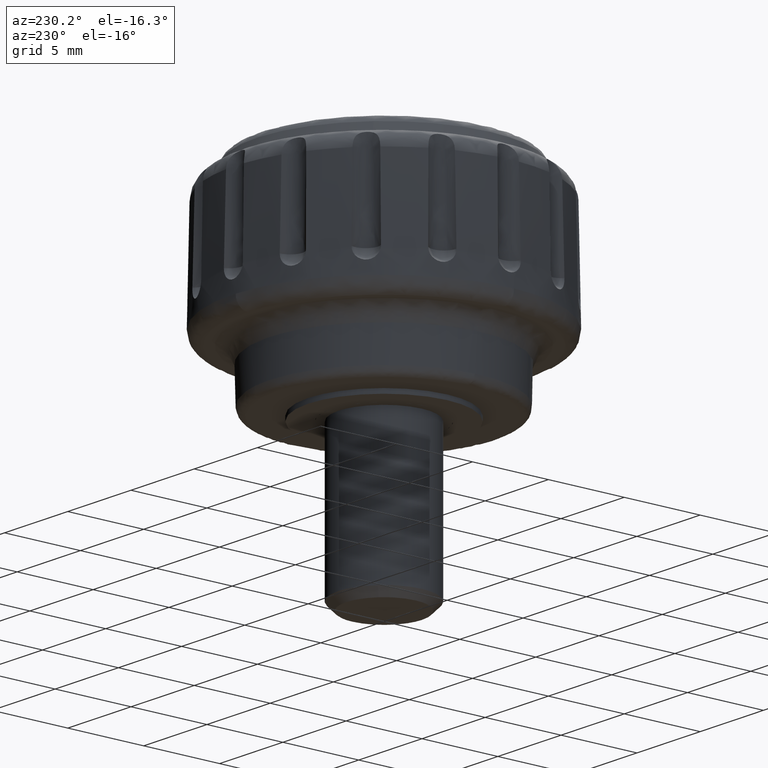
[diagram: clean part render]
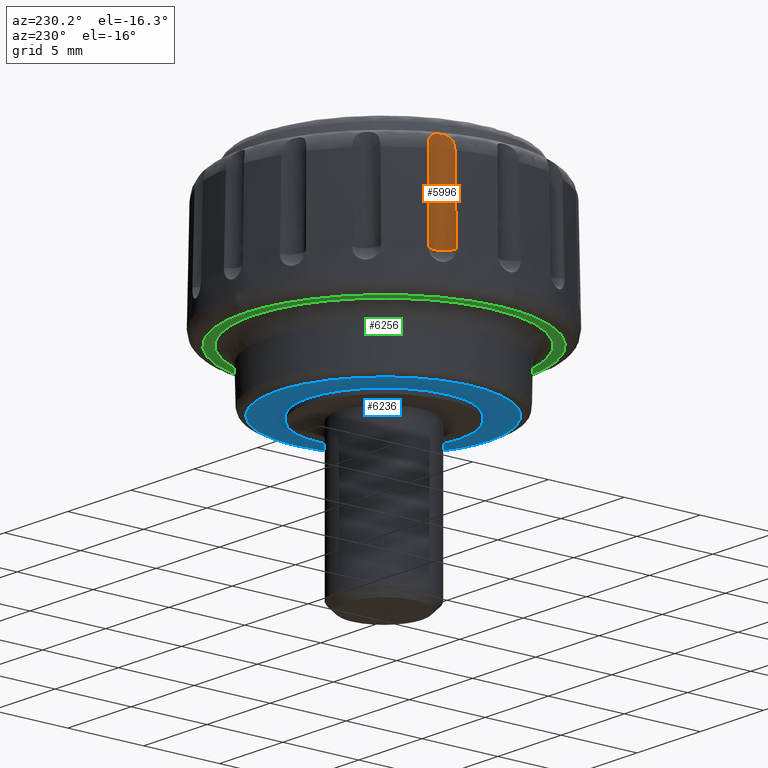
[diagram: same view with three faces highlighted in distinct colors, each labeled with its STEP entity id]
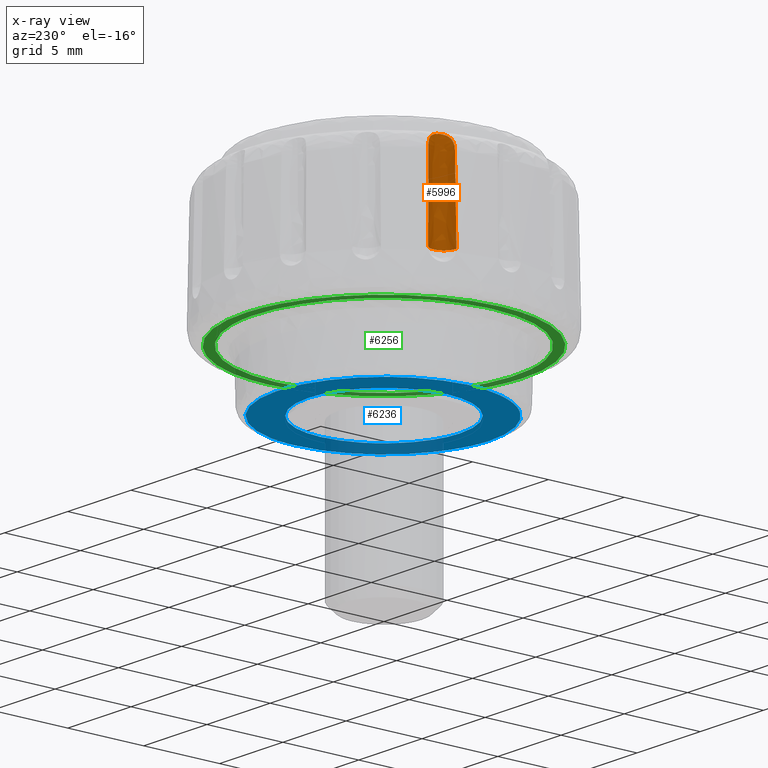
[diagram: x-ray of the same camera — body ghosted, the three highlighted faces saturated]
A machine part, auxiliary view with three faces highlighted in distinct colors.
The next image is the same camera in x-ray (body ghosted, the three faces saturated) — at least one of them is partly hidden behind the body in this view.
Their STEP definitions:

[orange] entity #5996 — the highlighted face is a freeform B-spline surface patch.
#2388=CARTESIAN_POINT('',(-9.342353820764480,3.107510079005215,11.624297996118401));
#2389=VERTEX_POINT('',#2388);
#2398=CARTESIAN_POINT('',(-9.454929184337260,3.103989979498800,6.399994000000130));
#2399=VERTEX_POINT('',#2398);
#2400=CARTESIAN_POINT('',(-9.454929184337260,3.103989979498800,6.399994000000130));
#2401=CARTESIAN_POINT('',(-9.342353820764480,3.107510079005215,11.624297996118401));
#2402=QUASI_UNIFORM_CURVE('',1,(#2400,#2401),.UNSPECIFIED.,.F.,.U.);
#2403=EDGE_CURVE('',#2399,#2389,#2402,.T.);
#2405=CARTESIAN_POINT('',(-8.880496905122159,4.490792178644780,6.399994000000119));
#2406=VERTEX_POINT('',#2405);
#2454=CARTESIAN_POINT('',(-8.803383188376751,4.408700289436485,11.624297996118401));
#2455=VERTEX_POINT('',#2454);
#2456=CARTESIAN_POINT('',(-8.803383188376751,4.408700289436485,11.624297996118401));
#2457=CARTESIAN_POINT('',(-8.880496905122159,4.490792178644780,6.399994000000119));
#2458=QUASI_UNIFORM_CURVE('',1,(#2456,#2457),.UNSPECIFIED.,.F.,.U.);
#2459=EDGE_CURVE('',#2455,#2406,#2458,.T.);
#4511=CARTESIAN_POINT('',(-9.342353820764489,3.107510079005210,11.624297996118401));
#4512=CARTESIAN_POINT('',(-9.341062533862969,3.107641871741112,11.682751883656540));
#4513=CARTESIAN_POINT('',(-9.335168843150557,3.108208179896984,11.740206799232951));
#4514=CARTESIAN_POINT('',(-9.314526694918495,3.110775423613771,11.853174576884170));
#4515=CARTESIAN_POINT('',(-9.299776513201532,3.112766938254323,11.908687386295069));
#4516=CARTESIAN_POINT('',(-9.270634898199655,3.118070202500775,11.990378186819910));
#4517=CARTESIAN_POINT('',(-9.259678449625818,3.120248805873692,12.017483500773469));
#4518=CARTESIAN_POINT('',(-9.235619899887555,3.125672454101159,12.070369958474370));
#4519=CARTESIAN_POINT('',(-9.222559939401616,3.128906032644845,12.096094436184710));
#4520=CARTESIAN_POINT('',(-9.180377450943041,3.140680488231310,12.171069754344920));
#4521=CARTESIAN_POINT('',(-9.148201650617921,3.151253786775212,12.218209182697020));
#4522=CARTESIAN_POINT('',(-9.076332435430386,3.181614383898344,12.305782467931850));
#4523=CARTESIAN_POINT('',(-9.037906562646869,3.200898487028604,12.344682891005061));
#4524=CARTESIAN_POINT('',(-8.978062608110761,3.238494290037252,12.395846759780399));
#4525=CARTESIAN_POINT('',(-8.957585545979240,3.252614588806467,12.411804236812459));
#4526=CARTESIAN_POINT('',(-8.917311690347779,3.283429685480305,12.440503150963631));
#4527=CARTESIAN_POINT('',(-8.897457535694789,3.300136623626364,12.453320381064319));
#4528=CARTESIAN_POINT('',(-8.858628627517899,3.336337790909768,12.476121725463321));
#4529=CARTESIAN_POINT('',(-8.839652782019579,3.355830195470930,12.486106835874160));
#4530=CARTESIAN_POINT('',(-8.802897964373646,3.397875247519701,12.503351168983830));
#4531=CARTESIAN_POINT('',(-8.785219111632248,3.420360930613105,12.510545423050051));
#4532=CARTESIAN_POINT('',(-8.752494790853351,3.466967207320761,12.521898989435170));
#4533=CARTESIAN_POINT('',(-8.737288925054882,3.491261789368260,12.526136537319291));
#4534=CARTESIAN_POINT('',(-8.709322591649434,3.541893293858875,12.531866158088951));
#4535=CARTESIAN_POINT('',(-8.696474124331484,3.568463473815458,12.533351399651620));
#4536=CARTESIAN_POINT('',(-8.662755497165541,3.649303986597335,12.533540440413191));
#4537=CARTESIAN_POINT('',(-8.646471421220904,3.704809146622667,12.528227017396651));
#4538=CARTESIAN_POINT('',(-8.626018416153283,3.818394394478055,12.505769128634620));
#4539=CARTESIAN_POINT('',(-8.622317842632061,3.873841035646358,12.489112560416929));
#4540=CARTESIAN_POINT('',(-8.624766670314269,3.954540271172828,12.454916770542569));
#4541=CARTESIAN_POINT('',(-8.626948565705520,3.980952835142473,12.441952670606950));
#4542=CARTESIAN_POINT('',(-8.633464202418836,4.031269799922425,12.413511622676040));
#4543=CARTESIAN_POINT('',(-8.637801043737065,4.055386856065128,12.397950175999950));
#4544=CARTESIAN_POINT('',(-8.648156359411475,4.101552833601770,12.364042462621560));
#4545=CARTESIAN_POINT('',(-8.654221189471770,4.123727859143391,12.345563490355820));
#4546=CARTESIAN_POINT('',(-8.667309465437809,4.165144652552653,12.306499764098000));
#4547=CARTESIAN_POINT('',(-8.674329798517338,4.184440384646016,12.285908983665241));
#4548=CARTESIAN_POINT('',(-8.696098232171558,4.238448586740508,12.221030132099781));
#4549=CARTESIAN_POINT('',(-8.711664437228484,4.269485788141831,12.173134099408740));
#4550=CARTESIAN_POINT('',(-8.740446592099898,4.320735539465304,12.073094693416360));
#4551=CARTESIAN_POINT('',(-8.753788097331245,4.341297070885148,12.020709829543630));
#4552=CARTESIAN_POINT('',(-8.770816643564668,4.365973539829180,11.938825169528901));
#4553=CARTESIAN_POINT('',(-8.776018131151707,4.373183296663354,11.910855568475551));
#4554=CARTESIAN_POINT('',(-8.785130519621008,4.385493790011108,11.854549707431291));
#4555=CARTESIAN_POINT('',(-8.789050381843287,4.390609744418858,11.826204751900111));
#4556=CARTESIAN_POINT('',(-8.798781705320440,4.403111276399570,11.740616414936911));
#4557=CARTESIAN_POINT('',(-8.802562282003821,4.407692768072289,11.682824618189439));
#4558=CARTESIAN_POINT('',(-8.803383188376751,4.408700289436485,11.624297996118401));
#4559=B_SPLINE_CURVE_WITH_KNOTS('',3,(#4511,#4512,#4513,#4514,#4515,#4516,#4517,#4518,#4519,#4520,#4521,#4522,#4523,#4524,#4525,#4526,#4527,#4528,#4529,#4530,#4531,#4532,#4533,#4534,#4535,#4536,#4537,#4538,#4539,#4540,#4541,#4542,#4543,#4544,#4545,#4546,#4547,#4548,#4549,#4550,#4551,#4552,#4553,#4554,#4555,#4556,#4557,#4558),.UNSPECIFIED.,.F.,.U.,(4,2,2,2,2,2,2,2,2,2,2,2,2,2,2,2,2,2,2,2,2,2,2,4),(0.0,0.062499999999998,0.124999999999996,0.156249999999996,0.187499999999996,0.249999999999998,0.312499999999999,0.343749999999999,0.374999999999999,0.406250000000000,0.437500000000000,0.468750000000000,0.500000000000000,0.562500000000001,0.625000000000001,0.656250000000002,0.687500000000002,0.718750000000003,0.750000000000004,0.812500000000004,0.875000000000004,0.906250000000003,0.937500000000002,1.0),.UNSPECIFIED.);
#4560=EDGE_CURVE('',#2389,#2455,#4559,.T.);
#5522=CARTESIAN_POINT('',(-9.454929184337260,3.103989979498800,6.399994000000130));
#5523=CARTESIAN_POINT('',(-9.378904938541702,3.100981494291780,6.399994000000135));
#5524=CARTESIAN_POINT('',(-9.261699081368196,3.113194445871780,6.399994000000127));
#5525=CARTESIAN_POINT('',(-9.107300824297525,3.164751180607827,6.399994000000141));
#5526=CARTESIAN_POINT('',(-8.972098375923480,3.235779812967625,6.399994000000091));
#5527=CARTESIAN_POINT('',(-8.854150340318075,3.333746513054762,6.399994000000188));
#5528=CARTESIAN_POINT('',(-8.758440464236099,3.452609402467548,6.399994000000111));
#5529=CARTESIAN_POINT('',(-8.688070561025910,3.576560023580290,6.399994000000147));
#5530=CARTESIAN_POINT('',(-8.629218515904674,3.750469664943116,6.399994000000119));
#5531=CARTESIAN_POINT('',(-8.614625866336198,3.960333966768833,6.399994000000130));
#5532=CARTESIAN_POINT('',(-8.656327638132112,4.150267673490742,6.399994000000127));
#5533=CARTESIAN_POINT('',(-8.738165048595073,4.330990610444182,6.399994000000119));
#5534=CARTESIAN_POINT('',(-8.817139542678373,4.432294329577874,6.399994000000127));
#5535=CARTESIAN_POINT('',(-8.880496905122159,4.490792178644780,6.399994000000119));
#5536=B_SPLINE_CURVE_WITH_KNOTS('',3,(#5522,#5523,#5524,#5525,#5526,#5527,#5528,#5529,#5530,#5531,#5532,#5533,#5534,#5535),.UNSPECIFIED.,.F.,.U.,(4,1,1,1,1,1,1,1,1,1,1,4),(0.000000031922387,0.228243489252435,0.349973290421748,0.486924100184803,0.684741272904991,0.806472342871111,0.943419536071489,1.110788447701560,1.354255705722550,1.567286410911851,1.689021049959605,1.947694732854463),.UNSPECIFIED.);
#5537=EDGE_CURVE('',#2399,#2406,#5536,.T.);
#5972=CARTESIAN_POINT('',(-9.461903857759133,3.104293967194231,12.686752165874379));
#5973=CARTESIAN_POINT('',(-9.461903857759133,3.104293967194231,6.242825045853263));
#5974=CARTESIAN_POINT('',(-8.886647394988035,3.076706406245466,12.686752165874386));
#5975=CARTESIAN_POINT('',(-8.886647394988035,3.076706406245466,6.242825045853263));
#5976=CARTESIAN_POINT('',(-8.677953904086486,3.613482056153641,12.686752165874379));
#5977=CARTESIAN_POINT('',(-8.677953904086486,3.613482056153641,6.242825045853263));
#5978=CARTESIAN_POINT('',(-8.469260413184939,4.150257706061817,12.686752165874386));
#5979=CARTESIAN_POINT('',(-8.469260413184939,4.150257706061817,6.242825045853263));
#5980=CARTESIAN_POINT('',(-8.912078043107048,4.518488093332048,12.686752165874379));
#5981=CARTESIAN_POINT('',(-8.912078043107048,4.518488093332048,6.242825045853263));
#5989=(BOUNDED_SURFACE()B_SPLINE_SURFACE(1,2,((#5972,#5974,#5976,#5978,#5980),(#5973,#5975,#5977,#5979,#5981)),.UNSPECIFIED.,.F.,.F.,.U.)B_SPLINE_SURFACE_WITH_KNOTS((2,2),(3,2,3),(0.0,6.443927120021118),(0.0,1.0,2.0),.UNSPECIFIED.)GEOMETRIC_REPRESENTATION_ITEM()RATIONAL_B_SPLINE_SURFACE(((1.0,0.811573981965012,1.0,0.811573981965012,1.0),(1.0,0.811573981965012,1.0,0.811573981965012,1.0)))REPRESENTATION_ITEM('')SURFACE());
#5990=ORIENTED_EDGE('',*,*,#2459,.T.);
#5991=ORIENTED_EDGE('',*,*,#5537,.F.);
#5992=ORIENTED_EDGE('',*,*,#2403,.T.);
#5993=ORIENTED_EDGE('',*,*,#4560,.T.);
#5994=EDGE_LOOP('',(#5990,#5991,#5992,#5993));
#5995=FACE_OUTER_BOUND('',#5994,.T.);
#5996=ADVANCED_FACE('',(#5995),#5989,.F.);

[blue] entity #6236 — the highlighted face is a freeform B-spline surface patch.
#1269=CARTESIAN_POINT('',(-3.228710985116786,-3.817779161280795,0.300014326748812));
#1270=VERTEX_POINT('',#1269);
#1276=CARTESIAN_POINT('',(-5.000001141194781,0.0,0.300014326748812));
#1277=VERTEX_POINT('',#1276);
#1278=CARTESIAN_POINT('',(-3.228710985116786,-3.817779161280795,0.300014326748812));
#1279=CARTESIAN_POINT('',(-3.522459436460499,-3.569471770053628,0.300014326748812));
#1280=CARTESIAN_POINT('',(-3.896317831594230,-3.170705179775126,0.300014326748812));
#1281=CARTESIAN_POINT('',(-4.293558788321400,-2.578017581260482,0.300014326748812));
#1282=CARTESIAN_POINT('',(-4.587938730494515,-2.028956265758997,0.300014326748813));
#1283=CARTESIAN_POINT('',(-4.803837584613387,-1.442848347247801,0.300014326748811));
#1284=CARTESIAN_POINT('',(-4.962464442132076,-0.723993742300744,0.300014326748812));
#1285=CARTESIAN_POINT('',(-5.000021985094931,-0.282814424952696,0.300014326748813));
#1286=CARTESIAN_POINT('',(-5.000001141194781,0.0,0.300014326748812));
#1287=B_SPLINE_CURVE_WITH_KNOTS('',3,(#1278,#1279,#1280,#1281,#1282,#1283,#1284,#1285,#1286),.UNSPECIFIED.,.F.,.U.,(4,1,1,1,1,1,4),(3.761153E-009,1.153879784144223,1.629008987517901,2.138074663421909,3.020449049907330,3.495577188246300,4.344017490336118),.UNSPECIFIED.);
#1288=EDGE_CURVE('',#1270,#1277,#1287,.T.);
#1290=CARTESIAN_POINT('',(0.000000380389754,5.000001141194766,0.300014326748812));
#1291=VERTEX_POINT('',#1290);
#1292=CARTESIAN_POINT('',(-5.000001141194781,0.0,0.300014326748812));
#1293=CARTESIAN_POINT('',(-5.000008549475763,0.214755426658628,0.300014326748812));
#1294=CARTESIAN_POINT('',(-4.971629008392371,0.654494205562724,0.300014326748812));
#1295=CARTESIAN_POINT('',(-4.845656986358417,1.287828354656300,0.300014326748814));
#1296=CARTESIAN_POINT('',(-4.632873711774091,1.918902732094746,0.300014326748808));
#1297=CARTESIAN_POINT('',(-4.325182308229123,2.544466110973952,0.300014326748817));
#1298=CARTESIAN_POINT('',(-3.940505426356899,3.101481511585686,0.300014326748807));
#1299=CARTESIAN_POINT('',(-3.452154946234651,3.640300066926530,0.300014326748816));
#1300=CARTESIAN_POINT('',(-2.883772324593608,4.112640339169984,0.300014326748814));
#1301=CARTESIAN_POINT('',(-2.245583377468793,4.484571246077727,0.300014326748804));
#1302=CARTESIAN_POINT('',(-1.583201868656775,4.758937294679451,0.300014326748816));
#1303=CARTESIAN_POINT('',(-0.859020552927294,4.949810049198955,0.300014326748811));
#1304=CARTESIAN_POINT('',(-0.296570269824917,5.000029885130998,0.300014326748812));
#1305=CARTESIAN_POINT('',(0.000000380389754,5.000001141194766,0.300014326748812));
#1306=B_SPLINE_CURVE_WITH_KNOTS('',3,(#1292,#1293,#1294,#1295,#1296,#1297,#1298,#1299,#1300,#1301,#1302,#1303,#1304,#1305),.UNSPECIFIED.,.F.,.U.,(4,1,1,1,1,1,1,1,1,1,1,4),(0.000000012652297,0.644266623509101,1.319222684142426,1.932819335125661,2.638453757029462,3.405445455161616,3.957669913965540,4.816705596388902,5.614379333376594,6.166614614482357,6.964288351625410,7.853995961573868),.UNSPECIFIED.);
#1307=EDGE_CURVE('',#1277,#1291,#1306,.T.);
#1309=CARTESIAN_POINT('',(5.000001141194781,0.0,0.300014326748812));
#1310=VERTEX_POINT('',#1309);
#1311=CARTESIAN_POINT('',(0.000000380389754,5.000001141194766,0.300014326748812));
#1312=CARTESIAN_POINT('',(0.357936601451986,5.000067868738126,0.300014326748812));
#1313=CARTESIAN_POINT('',(0.828329207788655,4.949269770089383,0.300014326748812));
#1314=CARTESIAN_POINT('',(1.492838125757139,4.780636900617029,0.300014326748812));
#1315=CARTESIAN_POINT('',(1.945828480995065,4.616988455975310,0.300014326748811));
#1316=CARTESIAN_POINT('',(2.460259594376710,4.363948556171949,0.300014326748812));
#1317=CARTESIAN_POINT('',(2.962323068286071,4.046027931329459,0.300014326748814));
#1318=CARTESIAN_POINT('',(3.544333587465859,3.559388066085278,0.300014326748808));
#1319=CARTESIAN_POINT('',(4.072528547502483,2.943252355823224,0.300014326748812));
#1320=CARTESIAN_POINT('',(4.492192293576125,2.238152204743739,0.300014326748816));
#1321=CARTESIAN_POINT('',(4.743465897329339,1.620800877120720,0.300014326748813));
#1322=CARTESIAN_POINT('',(4.943748334766139,0.879458019050678,0.300014326748807));
#1323=CARTESIAN_POINT('',(5.000063537570799,0.357934618142490,0.300014326748818));
#1324=CARTESIAN_POINT('',(5.000001141194781,0.0,0.300014326748812));
#1325=B_SPLINE_CURVE_WITH_KNOTS('',3,(#1311,#1312,#1313,#1314,#1315,#1316,#1317,#1318,#1319,#1320,#1321,#1322,#1323,#1324),.UNSPECIFIED.,.F.,.U.,(4,1,1,1,1,1,1,1,1,1,1,4),(0.000000012691349,1.073788408867335,1.411262082382881,2.055538163435408,2.515733991917213,3.129329686850096,3.834962578183586,4.786022964245522,5.553018535390468,6.289333529470653,6.780210629831322,7.853995532785273),.UNSPECIFIED.);
#1326=EDGE_CURVE('',#1291,#1310,#1325,.T.);
#1328=CARTESIAN_POINT('',(3.626872608736453,-3.441773604157516,0.300014326748812));
#1329=VERTEX_POINT('',#1328);
#1330=CARTESIAN_POINT('',(5.000001141194781,0.0,0.300014326748812));
#1331=CARTESIAN_POINT('',(5.000017950187034,-0.257027980048327,0.300014326748812));
#1332=CARTESIAN_POINT('',(4.962565103283993,-0.741420185497832,0.300014326748812));
#1333=CARTESIAN_POINT('',(4.798639084165725,-1.466266053968103,0.300014326748811));
#1334=CARTESIAN_POINT('',(4.559807064586155,-2.086157596981168,0.300014326748815));
#1335=CARTESIAN_POINT('',(4.186067118716769,-2.773161941588735,0.300014326748808));
#1336=CARTESIAN_POINT('',(3.865085900449294,-3.190829002433603,0.300014326748814));
#1337=CARTESIAN_POINT('',(3.626872608736453,-3.441773604157516,0.300014326748812));
#1338=B_SPLINE_CURVE_WITH_KNOTS('',3,(#1330,#1331,#1332,#1333,#1334,#1335,#1336,#1337),.UNSPECIFIED.,.F.,.U.,(4,1,1,1,1,4),(3.035764E-009,0.771081839152330,1.453195186504821,2.224272957571559,2.758101674285415,3.796097525643148),.UNSPECIFIED.);
#1339=EDGE_CURVE('',#1310,#1329,#1338,.T.);
#1439=CARTESIAN_POINT('',(-0.000000380389586,-5.000001141194765,0.300014326748812));
#1440=VERTEX_POINT('',#1439);
#1441=CARTESIAN_POINT('',(3.626872608736453,-3.441773604157516,0.300014326748812));
#1442=CARTESIAN_POINT('',(3.488668106870731,-3.587418315045656,0.300014326748812));
#1443=CARTESIAN_POINT('',(3.194679553716020,-3.862024953401719,0.300014326748813));
#1444=CARTESIAN_POINT('',(2.673208024692240,-4.242953122609952,0.300014326748811));
#1445=CARTESIAN_POINT('',(2.170466985502319,-4.516111936875064,0.300014326748814));
#1446=CARTESIAN_POINT('',(1.631798479603024,-4.735495296843702,0.300014326748811));
#1447=CARTESIAN_POINT('',(0.951042856365552,-4.935201998448579,0.300014326748813));
#1448=CARTESIAN_POINT('',(0.369866996423254,-5.000074395796664,0.300014326748812));
#1449=CARTESIAN_POINT('',(-0.000000380389586,-5.000001141194765,0.300014326748812));
#1450=B_SPLINE_CURVE_WITH_KNOTS('',3,(#1441,#1442,#1443,#1444,#1445,#1446,#1447,#1448,#1449),.UNSPECIFIED.,.F.,.U.,(4,1,1,1,1,1,4),(3.668919E-009,0.602342337608669,1.204689427690284,1.933844254373868,2.314266903486596,2.948316476241958,4.057898568406208),.UNSPECIFIED.);
#1451=EDGE_CURVE('',#1329,#1440,#1450,.T.);
#1453=CARTESIAN_POINT('',(-0.000000380389586,-5.000001141194765,0.300014326748812));
#1454=CARTESIAN_POINT('',(-0.374771713080275,-5.000072789389837,0.300014326748811));
#1455=CARTESIAN_POINT('',(-0.950587109743980,-4.934933927632125,0.300014326748813));
#1456=CARTESIAN_POINT('',(-1.785394566218398,-4.690193396393304,0.300014326748812));
#1457=CARTESIAN_POINT('',(-2.509924816538590,-4.355041320936697,0.300014326748812));
#1458=CARTESIAN_POINT('',(-2.998408217204816,-4.012579625246865,0.300014326748810));
#1459=CARTESIAN_POINT('',(-3.228710985116786,-3.817779161280795,0.300014326748812));
#1460=B_SPLINE_CURVE_WITH_KNOTS('',3,(#1453,#1454,#1455,#1456,#1457,#1458,#1459),.UNSPECIFIED.,.F.,.U.,(4,1,1,1,4),(2.682347E-009,1.124290082813124,1.727571553573905,2.605061992623051,3.509978366903335),.UNSPECIFIED.);
#1461=EDGE_CURVE('',#1440,#1270,#1460,.T.);
#3364=CARTESIAN_POINT('',(7.012923989987820,0.0,0.300014326748812));
#3365=VERTEX_POINT('',#3364);
#3366=CARTESIAN_POINT('',(0.136914495661090,-7.011587365978659,0.300014326748812));
#3367=VERTEX_POINT('',#3366);
#3368=CARTESIAN_POINT('',(7.012923989987820,0.0,0.300014326748812));
#3369=CARTESIAN_POINT('',(7.013003682294590,-0.481626305055280,0.300014326748812));
#3370=CARTESIAN_POINT('',(6.932331322650530,-1.260685009612527,0.300014326748812));
#3371=CARTESIAN_POINT('',(6.675186445815621,-2.190994383365401,0.300014326748812));
#3372=CARTESIAN_POINT('',(6.411936854176556,-2.864356568833173,0.300014326748813));
#3373=CARTESIAN_POINT('',(6.050455046661722,-3.587543487820576,0.300014326748811));
#3374=CARTESIAN_POINT('',(5.523218594949437,-4.363392598447668,0.300014326748813));
#3375=CARTESIAN_POINT('',(4.906971617460659,-5.031063231003458,0.300014326748814));
#3376=CARTESIAN_POINT('',(4.285069776367262,-5.569243443820373,0.300014326748811));
#3377=CARTESIAN_POINT('',(3.525860302920678,-6.093474626662588,0.300014326748812));
#3378=CARTESIAN_POINT('',(2.630765971152383,-6.528940792765242,0.300014326748813));
#3379=CARTESIAN_POINT('',(1.750700047359625,-6.805315586848235,0.300014326748810));
#3380=CARTESIAN_POINT('',(0.957690123732082,-6.962154400060527,0.300014326748816));
#3381=CARTESIAN_POINT('',(0.434328719835120,-7.005790082660745,0.300014326748814));
#3382=CARTESIAN_POINT('',(0.136914495661090,-7.011587365978659,0.300014326748812));
#3383=B_SPLINE_CURVE_WITH_KNOTS('',3,(#3368,#3369,#3370,#3371,#3372,#3373,#3374,#3375,#3376,#3377,#3378,#3379,#3380,#3381,#3382),.UNSPECIFIED.,.F.,.U.,(4,1,1,1,1,1,1,1,1,1,1,1,4),(8.632650E-009,1.444859877413451,2.337278303576122,2.889726744946820,3.612157986390235,4.759552630466319,5.694458051157247,6.331896631047864,7.224315012772821,8.456698609435772,9.306617834735645,9.986556416692237,10.878968695990009),.UNSPECIFIED.);
#3384=EDGE_CURVE('',#3365,#3367,#3383,.T.);
#3386=CARTESIAN_POINT('',(0.132171354095196,7.011678374148612,0.300014326748812));
#3387=VERTEX_POINT('',#3386);
#3388=CARTESIAN_POINT('',(0.132171354095196,7.011678374148612,0.300014326748812));
#3389=CARTESIAN_POINT('',(0.628094748432564,7.002414402874436,0.300014326748812));
#3390=CARTESIAN_POINT('',(1.405781676568325,6.904601459867685,0.300014326748812));
#3391=CARTESIAN_POINT('',(2.439227638570119,6.594328349723929,0.300014326748811));
#3392=CARTESIAN_POINT('',(3.218599912178060,6.250082818119522,0.300014326748814));
#3393=CARTESIAN_POINT('',(3.913754993750364,5.836043935872834,0.300014326748807));
#3394=CARTESIAN_POINT('',(4.593461233553158,5.323298137410108,0.300014326748815));
#3395=CARTESIAN_POINT('',(5.307147606800545,4.630515247453842,0.300014326748812));
#3396=CARTESIAN_POINT('',(5.926983007253373,3.797254452627388,0.300014326748809));
#3397=CARTESIAN_POINT('',(6.348729556219334,3.008475656429772,0.300014326748819));
#3398=CARTESIAN_POINT('',(6.638511647887899,2.299458249050185,0.300014326748808));
#3399=CARTESIAN_POINT('',(6.826077020651942,1.659077307881951,0.300014326748814));
#3400=CARTESIAN_POINT('',(6.974701766666928,0.864453589270412,0.300014326748812));
#3401=CARTESIAN_POINT('',(7.012941108634833,0.340114644116144,0.300014326748812));
#3402=CARTESIAN_POINT('',(7.012923989987820,0.0,0.300014326748812));
#3403=B_SPLINE_CURVE_WITH_KNOTS('',3,(#3388,#3389,#3390,#3391,#3392,#3393,#3394,#3395,#3396,#3397,#3398,#3399,#3400,#3401,#3402),.UNSPECIFIED.,.F.,.U.,(4,1,1,1,1,1,1,1,1,1,1,1,4),(8.658512E-009,1.488006971687845,2.338297385795551,3.231103274962177,4.038879192349527,4.761628031665447,5.781964266393644,7.014892894055228,7.865182743706953,8.460386354498931,9.310676204150582,9.863370679055713,10.883712729696560),.UNSPECIFIED.);
#3404=EDGE_CURVE('',#3387,#3365,#3403,.T.);
#3406=CARTESIAN_POINT('',(-7.007941115688030,0.264318386235442,0.300014326748812));
#3407=VERTEX_POINT('',#3406);
#3408=CARTESIAN_POINT('',(-7.007941115688030,0.264318386235442,0.300014326748812));
#3409=CARTESIAN_POINT('',(-6.989854193396120,0.745811644538507,0.300014326748812));
#3410=CARTESIAN_POINT('',(-6.869810125604554,1.592147855784097,0.300014326748814));
#3411=CARTESIAN_POINT('',(-6.473181339113252,2.778574551169168,0.300014326748811));
#3412=CARTESIAN_POINT('',(-5.994584853077888,3.683875874268013,0.300014326748812));
#3413=CARTESIAN_POINT('',(-5.454242789301580,4.431591282173575,0.300014326748808));
#3414=CARTESIAN_POINT('',(-4.948127346886028,4.988229233268024,0.300014326748827));
#3415=CARTESIAN_POINT('',(-4.322573247486319,5.544483515200012,0.300014326748807));
#3416=CARTESIAN_POINT('',(-3.621639770614348,6.029776734618009,0.300014326748808));
#3417=CARTESIAN_POINT('',(-2.888282772215909,6.404305033123118,0.300014326748825));
#3418=CARTESIAN_POINT('',(-2.173931002404750,6.680672405664540,0.300014326748801));
#3419=CARTESIAN_POINT('',(-1.530129322566370,6.856135263997657,0.300014326748817));
#3420=CARTESIAN_POINT('',(-0.732846445602711,6.989751448143225,0.300014326748810));
#3421=CARTESIAN_POINT('',(-0.207882214238004,7.018107139535510,0.300014326748813));
#3422=CARTESIAN_POINT('',(0.132171354095196,7.011678374148612,0.300014326748812));
#3423=B_SPLINE_CURVE_WITH_KNOTS('',3,(#3408,#3409,#3410,#3411,#3412,#3413,#3414,#3415,#3416,#3417,#3418,#3419,#3420,#3421,#3422),.UNSPECIFIED.,.F.,.U.,(4,1,1,1,1,1,1,1,1,1,1,1,4),(8.655242E-009,1.445486888597079,2.550864800141213,3.741272172596938,4.506528797728056,5.314310632313742,5.994525482040789,7.014878297997474,7.865166378447873,8.460368750786360,9.310656831236569,9.863350156100564,10.883690083715621),.UNSPECIFIED.);
#3424=EDGE_CURVE('',#3407,#3387,#3423,.T.);
#3486=CARTESIAN_POINT('',(0.136914495661090,-7.011587365978659,0.300014326748812));
#3487=CARTESIAN_POINT('',(0.068487624701364,-7.011658737417696,0.300014326748812));
#3488=CARTESIAN_POINT('',(0.000048175184151,-7.010368531349268,0.300014326748812));
#3489=CARTESIAN_POINT('',(-7.010384377709990,-6.878209335361436,0.300014326748812));
#3490=CARTESIAN_POINT('',(-7.007941115688030,0.264318386235442,0.300014326748812));
#3498=(BOUNDED_CURVE()B_SPLINE_CURVE(2,(#3486,#3487,#3488,#3489,#3490),.UNSPECIFIED.,.F.,.U.)B_SPLINE_CURVE_WITH_KNOTS((3,2,3),(0.246562331022993,0.250000000000000,0.500000000000000),.UNSPECIFIED.)CURVE()GEOMETRIC_REPRESENTATION_ITEM()RATIONAL_B_SPLINE_CURVE((0.992055801681793,0.995972520272437,1.0,0.707106781186548,1.0))REPRESENTATION_ITEM(''));
#3499=EDGE_CURVE('',#3367,#3407,#3498,.T.);
#6217=CARTESIAN_POINT('',(-7.708283432159234,-7.712049330877822,0.300014326748812));
#6218=CARTESIAN_POINT('',(7.713266557171627,-7.712049330877821,0.300014326748812));
#6219=CARTESIAN_POINT('',(-7.708283432159234,7.712140840558835,0.300014326748812));
#6220=CARTESIAN_POINT('',(7.713266557171627,7.712140840558837,0.300014326748812));
#6221=B_SPLINE_SURFACE_WITH_KNOTS('',1,1,((#6217,#6219),(#6218,#6220)),.UNSPECIFIED.,.F.,.F.,.U.,(2,2),(2,2),(0.0,15.421549989330860),(0.0,15.424190171436660),.UNSPECIFIED.);
#6222=ORIENTED_EDGE('',*,*,#3384,.T.);
#6223=ORIENTED_EDGE('',*,*,#3499,.T.);
#6224=ORIENTED_EDGE('',*,*,#3424,.T.);
#6225=ORIENTED_EDGE('',*,*,#3404,.T.);
#6226=EDGE_LOOP('',(#6222,#6223,#6224,#6225));
#6227=FACE_OUTER_BOUND('',#6226,.T.);
#6228=ORIENTED_EDGE('',*,*,#1307,.F.);
#6229=ORIENTED_EDGE('',*,*,#1288,.F.);
#6230=ORIENTED_EDGE('',*,*,#1461,.F.);
#6231=ORIENTED_EDGE('',*,*,#1451,.F.);
#6232=ORIENTED_EDGE('',*,*,#1339,.F.);
#6233=ORIENTED_EDGE('',*,*,#1326,.F.);
#6234=EDGE_LOOP('',(#6228,#6229,#6230,#6231,#6232,#6233));
#6235=FACE_BOUND('',#6234,.T.);
#6236=ADVANCED_FACE('',(#6227,#6235),#6221,.F.);

[green] entity #6256 — the highlighted face is a freeform B-spline surface patch.
#3546=CARTESIAN_POINT('',(-8.560218985547540,0.430646291936510,4.000007163374405));
#3547=VERTEX_POINT('',#3546);
#3562=CARTESIAN_POINT('',(0.215378485795290,8.568338082540537,4.000007163374405));
#3563=VERTEX_POINT('',#3562);
#3564=CARTESIAN_POINT('',(0.215378485795290,8.568338082540537,4.000007163374405));
#3565=CARTESIAN_POINT('',(-0.198488620815536,8.578762847230758,4.000007163374402));
#3566=CARTESIAN_POINT('',(-0.854966300649016,8.547637266082655,4.000007163374413));
#3567=CARTESIAN_POINT('',(-1.792120313819629,8.394435248753895,4.000007163374404));
#3568=CARTESIAN_POINT('',(-2.661117247389722,8.167341626927794,4.000007163374393));
#3569=CARTESIAN_POINT('',(-3.611773505660822,7.798245888723137,4.000007163374413));
#3570=CARTESIAN_POINT('',(-4.675259190521830,7.221241172077389,4.000007163374394));
#3571=CARTESIAN_POINT('',(-5.519075962933738,6.586330022531277,4.000007163374376));
#3572=CARTESIAN_POINT('',(-6.253146940024529,5.880417195457690,4.000007163374415));
#3573=CARTESIAN_POINT('',(-6.772069654095596,5.278402427968388,4.000007163374400));
#3574=CARTESIAN_POINT('',(-7.334916262953651,4.470959023248286,4.000007163374405));
#3575=CARTESIAN_POINT('',(-7.876111032058179,3.466196377936543,4.000007163374403));
#3576=CARTESIAN_POINT('',(-8.251449585022828,2.405384422258328,4.000007163374407));
#3577=CARTESIAN_POINT('',(-8.477994154832659,1.359177204380289,4.000007163374401));
#3578=CARTESIAN_POINT('',(-8.542895677993188,0.775208805263838,4.000007163374407));
#3579=CARTESIAN_POINT('',(-8.560218985547540,0.430646291936510,4.000007163374405));
#3580=B_SPLINE_CURVE_WITH_KNOTS('',3,(#3564,#3565,#3566,#3567,#3568,#3569,#3570,#3571,#3572,#3573,#3574,#3575,#3576,#3577,#3578,#3579),.UNSPECIFIED.,.F.,.U.,(4,1,1,1,1,1,1,1,1,1,1,1,1,4),(4.580185E-009,1.241992449590313,1.966489988548448,2.846239898766873,3.932989038641528,5.019738611472638,6.468737266827884,7.089725058067232,8.072974863235384,8.849220897367680,10.039469324069040,11.488468144788110,12.212965981828360,13.247958946722440),.UNSPECIFIED.);
#3581=EDGE_CURVE('',#3563,#3547,#3580,.T.);
#3583=CARTESIAN_POINT('',(8.571044591463629,0.0,4.000007163374405));
#3584=VERTEX_POINT('',#3583);
#3585=CARTESIAN_POINT('',(8.571044591463629,0.0,4.000007163374405));
#3586=CARTESIAN_POINT('',(8.571062324064755,0.413998115727310,4.000007163374412));
#3587=CARTESIAN_POINT('',(8.509693230780279,1.259241676791207,4.000007163374390));
#3588=CARTESIAN_POINT('',(8.222320564171856,2.542187069218690,4.000007163374434));
#3589=CARTESIAN_POINT('',(7.795034596295585,3.620184796209105,4.000007163374394));
#3590=CARTESIAN_POINT('',(7.261164886315412,4.587814763326374,4.000007163374422));
#3591=CARTESIAN_POINT('',(6.642020172091645,5.462765250936153,4.000007163374440));
#3592=CARTESIAN_POINT('',(5.869210128361583,6.279550394055801,4.000007163374267));
#3593=CARTESIAN_POINT('',(5.092136583638956,6.912091761548115,4.000007163374713));
#3594=CARTESIAN_POINT('',(4.414897220800374,7.359313211029554,4.000007163373919));
#3595=CARTESIAN_POINT('',(3.686058887692415,7.753778138335057,4.000007163375251));
#3596=CARTESIAN_POINT('',(2.984780272274265,8.047349066119768,4.000007163374028));
#3597=CARTESIAN_POINT('',(2.178321232808993,8.302023316569100,4.000007163374598));
#3598=CARTESIAN_POINT('',(1.300596856200418,8.493996681614103,4.000007163374093));
#3599=CARTESIAN_POINT('',(0.594758416037238,8.558816014039687,4.000007163374746));
#3600=CARTESIAN_POINT('',(0.215378485795290,8.568338082540537,4.000007163374405));
#3601=B_SPLINE_CURVE_WITH_KNOTS('',3,(#3585,#3586,#3587,#3588,#3589,#3590,#3591,#3592,#3593,#3594,#3595,#3596,#3597,#3598,#3599,#3600),.UNSPECIFIED.,.F.,.U.,(4,1,1,1,1,1,1,1,1,1,1,1,1,4),(4.585505E-009,1.241994828831292,2.535745698046769,3.932996573020546,4.709244872746371,5.847750519903239,7.141491593608380,8.072990328535786,8.849237849674701,9.573737751700064,10.556989146799150,11.126237608039940,12.109486347716290,13.247984325636040),.UNSPECIFIED.);
#3602=EDGE_CURVE('',#3584,#3563,#3601,.T.);
#3604=CARTESIAN_POINT('',(-1.416165061150936,-8.453240898106461,4.000007163374404));
#3605=VERTEX_POINT('',#3604);
#3606=CARTESIAN_POINT('',(-1.416165061150936,-8.453240898106461,4.000007163374404));
#3607=CARTESIAN_POINT('',(-1.052954744356989,-8.514104163806666,4.000007163374405));
#3608=CARTESIAN_POINT('',(-0.376644585830617,-8.582986933578249,4.000007163374409));
#3609=CARTESIAN_POINT('',(0.535557541319990,-8.567307535588578,4.000007163374388));
#3610=CARTESIAN_POINT('',(1.364471549848273,-8.473934135282969,4.000007163374423));
#3611=CARTESIAN_POINT('',(2.181753547160507,-8.305068681597247,4.000007163374412));
#3612=CARTESIAN_POINT('',(3.050908551537344,-8.027695148741334,4.000007163374402));
#3613=CARTESIAN_POINT('',(3.938133292583382,-7.634185962554127,4.000007163374407));
#3614=CARTESIAN_POINT('',(4.674136059688017,-7.200175120428344,4.000007163374403));
#3615=CARTESIAN_POINT('',(5.364767209447655,-6.698967584458742,4.000007163374411));
#3616=CARTESIAN_POINT('',(5.979860370078781,-6.163864121257936,4.000007163374393));
#3617=CARTESIAN_POINT('',(6.625609490492254,-5.465502141793882,4.000007163374437));
#3618=CARTESIAN_POINT('',(7.189409493608701,-4.699223869671274,4.000007163374318));
#3619=CARTESIAN_POINT('',(7.751204225536873,-3.723531185201525,4.000007163374318));
#3620=CARTESIAN_POINT('',(8.187707560403064,-2.641069209006023,4.000007163374439));
#3621=CARTESIAN_POINT('',(8.498517853069913,-1.337403675240354,4.000007163374383));
#3622=CARTESIAN_POINT('',(8.571084497393590,-0.484572449167479,4.000007163374440));
#3623=CARTESIAN_POINT('',(8.571044591463629,0.0,4.000007163374405));
#3624=B_SPLINE_CURVE_WITH_KNOTS('',3,(#3606,#3607,#3608,#3609,#3610,#3611,#3612,#3613,#3614,#3615,#3616,#3617,#3618,#3619,#3620,#3621,#3622,#3623),.UNSPECIFIED.,.F.,.U.,(4,1,1,1,1,1,1,1,1,1,1,1,1,1,1,4),(3.068960E-009,1.104823316407064,2.035202696827865,2.732988984209284,3.605223081495801,4.535605390186628,5.465987654026097,6.512669165180851,7.094155474071856,8.024522474565135,8.954903128105503,9.943435180403016,10.873818155227941,12.327540282141181,13.432370207236380,14.886082952421020),.UNSPECIFIED.);
#3625=EDGE_CURVE('',#3605,#3584,#3624,.T.);
#3663=CARTESIAN_POINT('',(-8.571044591463629,0.0,4.000007163374405));
#3664=VERTEX_POINT('',#3663);
#3665=CARTESIAN_POINT('',(-8.571044591463629,0.0,4.000007163374405));
#3666=CARTESIAN_POINT('',(-8.571110721653595,-0.533055378463135,4.000007163374410));
#3667=CARTESIAN_POINT('',(-8.491794905532336,-1.379640089323884,4.000007163374410));
#3668=CARTESIAN_POINT('',(-8.243985588160458,-2.385881183974926,4.000007163374390));
#3669=CARTESIAN_POINT('',(-7.970099630941538,-3.187452411118795,4.000007163374400));
#3670=CARTESIAN_POINT('',(-7.590097431919771,-4.032643930846158,4.000007163374432));
#3671=CARTESIAN_POINT('',(-6.947857128790055,-5.076686276860104,4.000007163374312));
#3672=CARTESIAN_POINT('',(-6.111601552733090,-6.059242122821781,4.000007163374463));
#3673=CARTESIAN_POINT('',(-5.205081553682989,-6.837186809138734,4.000007163374399));
#3674=CARTESIAN_POINT('',(-4.289349440355821,-7.444747499710494,4.000007163374428));
#3675=CARTESIAN_POINT('',(-3.390416657532503,-7.895809090284649,4.000007163374409));
#3676=CARTESIAN_POINT('',(-2.399183953876651,-8.248198714245685,4.000007163374403));
#3677=CARTESIAN_POINT('',(-1.756341049923111,-8.396261815987815,4.000007163374353));
#3678=CARTESIAN_POINT('',(-1.416165061150936,-8.453240898106461,4.000007163374404));
#3679=B_SPLINE_CURVE_WITH_KNOTS('',3,(#3665,#3666,#3667,#3668,#3669,#3670,#3671,#3672,#3673,#3674,#3675,#3676,#3677,#3678),.UNSPECIFIED.,.F.,.U.,(4,1,1,1,1,1,1,1,1,1,1,4),(6.562882E-009,1.599151547295202,2.539832356892495,3.104240927787815,4.138991044606439,5.314841963177207,6.772887651108240,7.995771107417831,8.889416557562548,10.065266017895439,11.005946577948190,12.040691414872320),.UNSPECIFIED.);
#3680=EDGE_CURVE('',#3664,#3605,#3679,.T.);
#3682=CARTESIAN_POINT('',(-8.560218985547540,0.430646291936510,4.000007163374405));
#3683=CARTESIAN_POINT('',(-8.567434822256665,0.287218831435471,4.000007163374407));
#3684=CARTESIAN_POINT('',(-8.571044711836967,0.143609006296768,4.000007163374405));
#3685=CARTESIAN_POINT('',(-8.571044591463629,0.0,4.000007163374405));
#3686=B_SPLINE_CURVE_WITH_KNOTS('',3,(#3682,#3683,#3684,#3685),.UNSPECIFIED.,.F.,.U.,(4,4),(1.049100E-011,0.430828400730513),.UNSPECIFIED.);
#3687=EDGE_CURVE('',#3547,#3664,#3686,.T.);
#3723=CARTESIAN_POINT('',(-0.230785677047337,9.180736736550843,4.000003000000104));
#3724=VERTEX_POINT('',#3723);
#3725=CARTESIAN_POINT('',(9.183636986037360,0.0,4.000003000000105));
#3726=VERTEX_POINT('',#3725);
#3727=CARTESIAN_POINT('',(-0.230785677047337,9.180736736550843,4.000003000000104));
#3728=CARTESIAN_POINT('',(0.379709731830276,9.196162314776839,4.000003000000109));
#3729=CARTESIAN_POINT('',(1.374224436133252,9.121692838391718,4.000003000000095));
#3730=CARTESIAN_POINT('',(2.619605615465463,8.821241442195538,4.000003000000115));
#3731=CARTESIAN_POINT('',(3.680075273753250,8.439203901223671,4.000003000000102));
#3732=CARTESIAN_POINT('',(4.705180398851308,7.921888698791093,4.000003000000103));
#3733=CARTESIAN_POINT('',(5.725778367690158,7.212158601894050,4.000003000000059));
#3734=CARTESIAN_POINT('',(6.533975724011830,6.480936803116797,4.000003000000265));
#3735=CARTESIAN_POINT('',(7.191488244074903,5.736015329252330,4.000002999999995));
#3736=CARTESIAN_POINT('',(7.726935320241514,4.991373129255556,4.000003000000188));
#3737=CARTESIAN_POINT('',(8.242914157136063,4.097835639763138,4.000003000000093));
#3738=CARTESIAN_POINT('',(8.687833747373947,3.060633555353801,4.000003000000090));
#3739=CARTESIAN_POINT('',(8.979836111440088,2.010352878094898,4.000003000000111));
#3740=CARTESIAN_POINT('',(9.146287725518498,0.992357834692988,4.000003000000125));
#3741=CARTESIAN_POINT('',(9.183646836336550,0.362592152601637,4.000003000000094));
#3742=CARTESIAN_POINT('',(9.183636986037360,0.0,4.000003000000105));
#3743=B_SPLINE_CURVE_WITH_KNOTS('',3,(#3727,#3728,#3729,#3730,#3731,#3732,#3733,#3734,#3735,#3736,#3737,#3738,#3739,#3740,#3741,#3742),.UNSPECIFIED.,.F.,.U.,(4,1,1,1,1,1,1,1,1,1,1,1,1,4),(1.322993E-009,1.832054575861775,2.977092653635225,3.835869777078170,5.209916720889694,6.412207366350307,7.557231708668507,8.473259897558908,9.389289008854899,10.305319826714641,11.564860841238300,12.767148300809820,13.568679860913450,14.656456963057259),.UNSPECIFIED.);
#3744=EDGE_CURVE('',#3724,#3726,#3743,.T.);
#3763=CARTESIAN_POINT('',(-9.180736731695586,-0.230785676644892,4.000003000000104));
#3764=VERTEX_POINT('',#3763);
#3778=CARTESIAN_POINT('',(0.115391313298883,-9.182912018315786,4.000003000000105));
#3779=VERTEX_POINT('',#3778);
#3780=CARTESIAN_POINT('',(0.115391313298883,-9.182912018315786,4.000003000000105));
#3781=CARTESIAN_POINT('',(-0.275871265601756,-9.187842761839047,4.000003000000107));
#3782=CARTESIAN_POINT('',(-0.909849730976722,-9.155234629307451,4.000003000000109));
#3783=CARTESIAN_POINT('',(-1.996907768623274,-8.985596264479614,4.000003000000074));
#3784=CARTESIAN_POINT('',(-3.077373301497431,-8.686029126481881,4.000003000000176));
#3785=CARTESIAN_POINT('',(-4.325743071287362,-8.138221652365111,4.000003000000044));
#3786=CARTESIAN_POINT('',(-5.402895632683841,-7.463513037435785,4.000003000000145));
#3787=CARTESIAN_POINT('',(-6.259836462836049,-6.742276253307634,4.000003000000088));
#3788=CARTESIAN_POINT('',(-6.894500875462896,-6.084766824692269,4.000003000000137));
#3789=CARTESIAN_POINT('',(-7.445381103956240,-5.402803343025024,4.000003000000017));
#3790=CARTESIAN_POINT('',(-8.027464912339863,-4.512521099920616,4.000003000000226));
#3791=CARTESIAN_POINT('',(-8.516270192595774,-3.503736880205120,4.000003000000167));
#3792=CARTESIAN_POINT('',(-8.836474644679779,-2.548262911024837,4.000002999999998));
#3793=CARTESIAN_POINT('',(-9.085223382000294,-1.495818558977948,4.000003000000240));
#3794=CARTESIAN_POINT('',(-9.167674343753195,-0.752350769924661,4.000003000000030));
#3795=CARTESIAN_POINT('',(-9.180736731695586,-0.230785676644892,4.000003000000104));
#3796=B_SPLINE_CURVE_WITH_KNOTS('',3,(#3780,#3781,#3782,#3783,#3784,#3785,#3786,#3787,#3788,#3789,#3790,#3791,#3792,#3793,#3794,#3795),.UNSPECIFIED.,.F.,.U.,(4,1,1,1,1,1,1,1,1,1,1,1,1,4),(2.655499E-009,1.173880037861295,1.900573741634608,3.298060376958185,4.527848566454663,5.981234319184933,7.099217444219695,7.881801344170135,8.720294321399450,9.726481684209851,11.068069232436770,12.074259722289479,12.745053830029059,14.310229739747180),.UNSPECIFIED.);
#3797=EDGE_CURVE('',#3779,#3764,#3796,.T.);
#3799=CARTESIAN_POINT('',(9.183636986037360,0.0,4.000003000000105));
#3800=CARTESIAN_POINT('',(9.183717318627556,-0.596265096959971,4.000003000000089));
#3801=CARTESIAN_POINT('',(9.092567563558896,-1.527887875403208,4.000003000000140));
#3802=CARTESIAN_POINT('',(8.792966296440842,-2.703279267110438,4.000003000000076));
#3803=CARTESIAN_POINT('',(8.479573032565227,-3.561846186332845,4.000003000000157));
#3804=CARTESIAN_POINT('',(8.118708017112436,-4.319811943982225,4.000003000000061));
#3805=CARTESIAN_POINT('',(7.623736332727457,-5.153794238582093,4.000003000000148));
#3806=CARTESIAN_POINT('',(7.062219426240619,-5.899830622689656,4.000003000000088));
#3807=CARTESIAN_POINT('',(6.359449815864079,-6.647011939906916,4.000003000000106));
#3808=CARTESIAN_POINT('',(5.612902850626456,-7.296004687849612,4.000003000000109));
#3809=CARTESIAN_POINT('',(4.732836462004406,-7.894087364062618,4.000003000000101));
#3810=CARTESIAN_POINT('',(3.707266865576588,-8.429662447913522,4.000003000000105));
#3811=CARTESIAN_POINT('',(2.690635420723996,-8.804709112091688,4.000003000000110));
#3812=CARTESIAN_POINT('',(1.455972174968923,-9.095994515495669,4.000003000000110));
#3813=CARTESIAN_POINT('',(0.637079733228811,-9.176404867492447,4.000003000000082));
#3814=CARTESIAN_POINT('',(0.115391313298883,-9.182912018315786,4.000003000000105));
#3815=B_SPLINE_CURVE_WITH_KNOTS('',3,(#3799,#3800,#3801,#3802,#3803,#3804,#3805,#3806,#3807,#3808,#3809,#3810,#3811,#3812,#3813,#3814),.UNSPECIFIED.,.F.,.U.,(4,1,1,1,1,1,1,1,1,1,1,1,1,4),(2.642860E-009,1.788776614594724,2.794970704555785,3.633462386428095,4.527855286282208,5.310447683567276,6.540239426051254,7.322818786282565,8.384906456047247,9.502900425502151,10.509090102444420,11.850679537623730,12.745072745123791,14.310250977722070),.UNSPECIFIED.);
#3816=EDGE_CURVE('',#3726,#3779,#3815,.T.);
#3838=CARTESIAN_POINT('',(-9.183636986037360,0.0,4.000003000000105));
#3839=VERTEX_POINT('',#3838);
#3840=CARTESIAN_POINT('',(-9.183636986037360,0.0,4.000003000000105));
#3841=CARTESIAN_POINT('',(-9.183681695384799,0.517520166065633,4.000003000000091));
#3842=CARTESIAN_POINT('',(-9.105305096897309,1.441646156193430,4.000003000000126));
#3843=CARTESIAN_POINT('',(-8.807112425291042,2.684505441342434,4.000003000000100));
#3844=CARTESIAN_POINT('',(-8.377544003392282,3.828387231208736,4.000003000000085));
#3845=CARTESIAN_POINT('',(-7.825842311477835,4.857576575826772,4.000003000000142));
#3846=CARTESIAN_POINT('',(-7.067690383297596,5.908598728361652,4.000003000000111));
#3847=CARTESIAN_POINT('',(-6.287961953017014,6.727748731306226,4.000003000000078));
#3848=CARTESIAN_POINT('',(-5.398200185097612,7.452019548417635,4.000003000000237));
#3849=CARTESIAN_POINT('',(-4.450072614045072,8.065903316555096,4.000002999999908));
#3850=CARTESIAN_POINT('',(-3.392920456062156,8.561929047449189,4.000003000000085));
#3851=CARTESIAN_POINT('',(-2.387772141610511,8.882669658310265,4.000003000000183));
#3852=CARTESIAN_POINT('',(-1.375068368107925,9.100964779435708,4.000003000000081));
#3853=CARTESIAN_POINT('',(-0.674233552610707,9.169611262964761,4.000003000000163));
#3854=CARTESIAN_POINT('',(-0.230785677047337,9.180736736550843,4.000003000000104));
#3855=B_SPLINE_CURVE_WITH_KNOTS('',3,(#3840,#3841,#3842,#3843,#3844,#3845,#3846,#3847,#3848,#3849,#3850,#3851,#3852,#3853,#3854),.UNSPECIFIED.,.F.,.U.,(4,1,1,1,1,1,1,1,1,1,1,1,4),(3.040237E-009,1.552554605537742,2.772426666173075,3.825952138507635,5.212170608703218,6.265689111212778,7.707345982360389,8.594528153987634,9.703499241247645,11.089714951495440,12.087793056076960,12.864075040174059,14.194834850379440),.UNSPECIFIED.);
#3856=EDGE_CURVE('',#3839,#3724,#3855,.T.);
#3858=CARTESIAN_POINT('',(-9.180736731695586,-0.230785676644892,4.000003000000104));
#3859=CARTESIAN_POINT('',(-9.183636986037360,0.0,4.000003000000105));
#3860=QUASI_UNIFORM_CURVE('',1,(#3858,#3859),.UNSPECIFIED.,.F.,.U.);
#3861=EDGE_CURVE('',#3764,#3839,#3860,.T.);
#6237=CARTESIAN_POINT('',(-10.101081874884700,-10.100176065644259,4.000007163374405));
#6238=CARTESIAN_POINT('',(10.101081382236019,-10.100176065644259,4.000007163374405));
#6239=CARTESIAN_POINT('',(-10.101081874884700,10.098001440614579,4.000007163374405));
#6240=CARTESIAN_POINT('',(10.101081382236019,10.098001440614579,4.000007163374405));
#6241=B_SPLINE_SURFACE_WITH_KNOTS('',1,1,((#6237,#6239),(#6238,#6240)),.UNSPECIFIED.,.F.,.F.,.U.,(2,2),(2,2),(0.0,20.202163257120709),(0.0,20.198177506258840),.UNSPECIFIED.);
#6242=ORIENTED_EDGE('',*,*,#3856,.T.);
#6243=ORIENTED_EDGE('',*,*,#3744,.T.);
#6244=ORIENTED_EDGE('',*,*,#3816,.T.);
#6245=ORIENTED_EDGE('',*,*,#3797,.T.);
#6246=ORIENTED_EDGE('',*,*,#3861,.T.);
#6247=EDGE_LOOP('',(#6242,#6243,#6244,#6245,#6246));
#6248=FACE_OUTER_BOUND('',#6247,.T.);
#6249=ORIENTED_EDGE('',*,*,#3687,.T.);
#6250=ORIENTED_EDGE('',*,*,#3680,.T.);
#6251=ORIENTED_EDGE('',*,*,#3625,.T.);
#6252=ORIENTED_EDGE('',*,*,#3602,.T.);
#6253=ORIENTED_EDGE('',*,*,#3581,.T.);
#6254=EDGE_LOOP('',(#6249,#6250,#6251,#6252,#6253));
#6255=FACE_BOUND('',#6254,.T.);
#6256=ADVANCED_FACE('',(#6248,#6255),#6241,.F.);